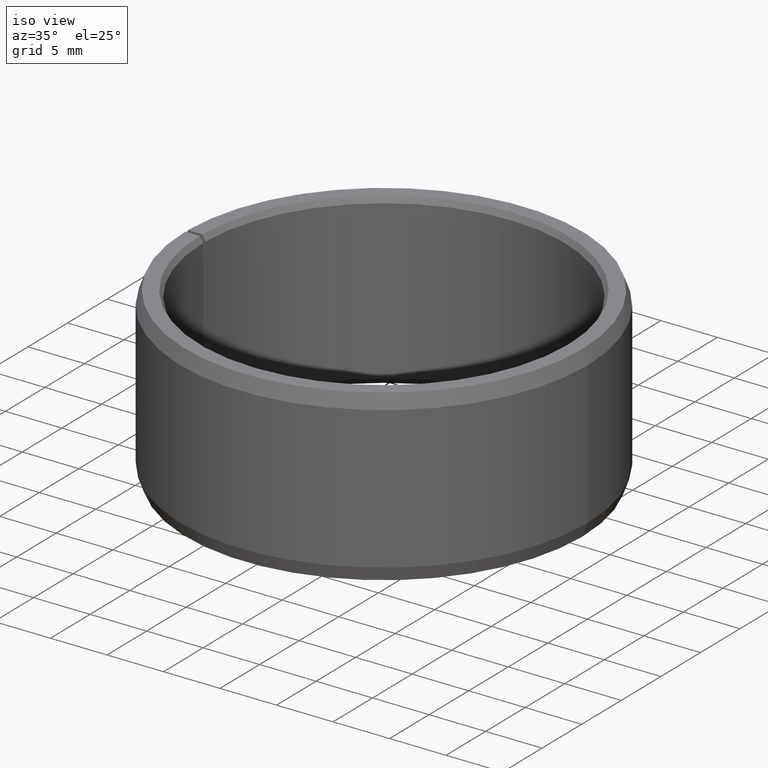
[diagram: clean part render]
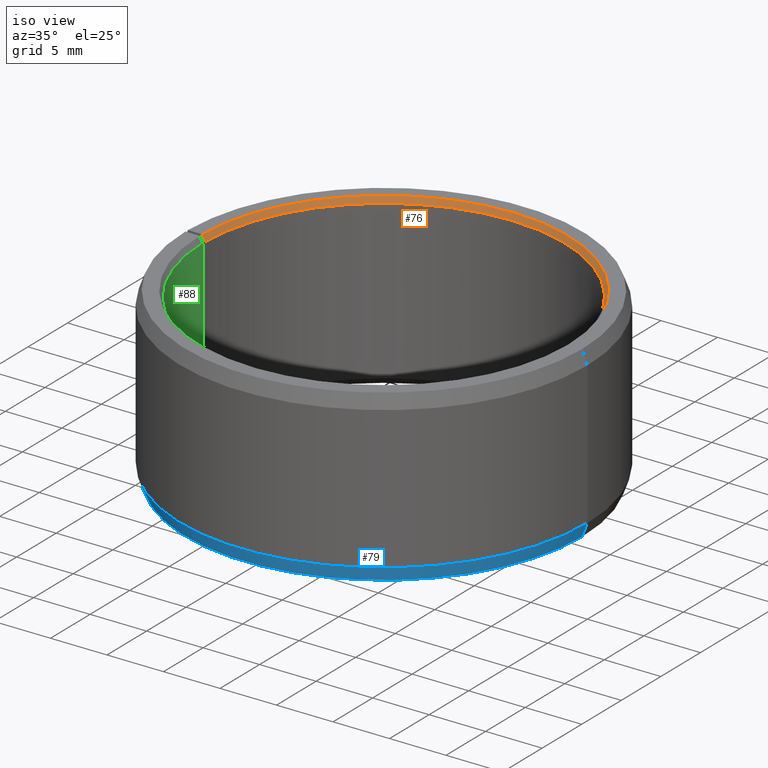
[diagram: same view with three faces highlighted in distinct colors, each labeled with its STEP entity id]
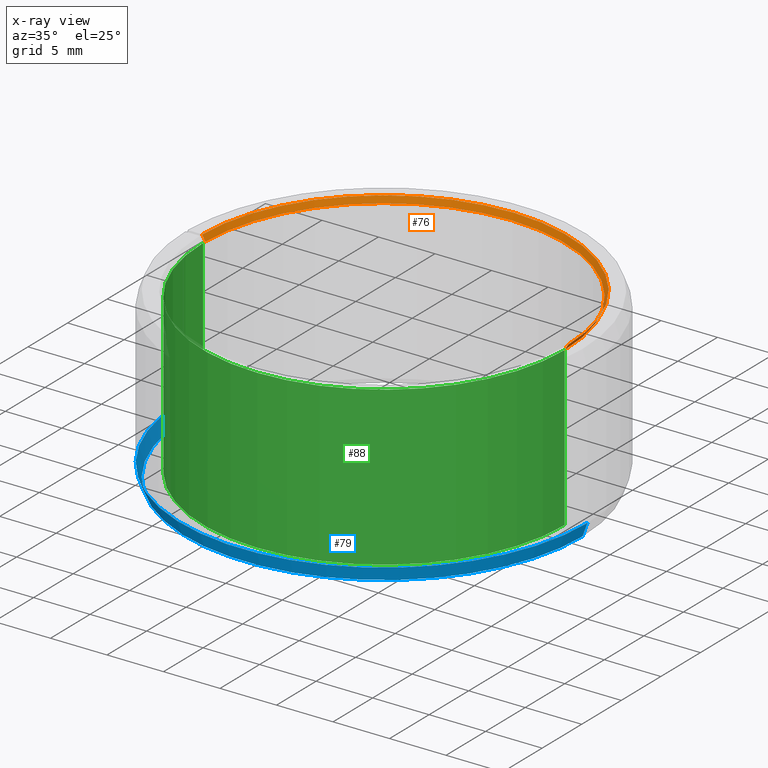
[diagram: x-ray of the same camera — body ghosted, the three highlighted faces saturated]
A machine part, iso view with three faces highlighted in distinct colors.
The next image is the same camera in x-ray (body ghosted, the three faces saturated) — at least one of them is partly hidden behind the body in this view.
Their STEP definitions:

[orange] entity #76 — the highlighted conical surface has half-angle 30 deg.
#76=ADVANCED_FACE('',(#94),#95,.F.);
#94=FACE_OUTER_BOUND('',#126,.T.);
#95=CONICAL_SURFACE('',#127,16.1443375672974,0.523598775598303);
#126=EDGE_LOOP('',(#163,#164,#165,#166));
#127=AXIS2_PLACEMENT_3D('',#167,#168,#169);
#163=ORIENTED_EDGE('',*,*,#284,.F.);
#164=ORIENTED_EDGE('',*,*,#285,.T.);
#165=ORIENTED_EDGE('',*,*,#286,.T.);
#166=ORIENTED_EDGE('',*,*,#281,.F.);
#167=CARTESIAN_POINT('',(8.44673607181666E-015,-8.8523736642439E-015,14.75));
#168=DIRECTION('',(5.48707263966375E-016,-6.09939603923743E-016,1.0));
#169=DIRECTION('',(-1.0,1.76004364123684E-015,5.48707263966376E-016));
#281=EDGE_CURVE('',#318,#321,#322,.T.);
#284=EDGE_CURVE('',#326,#318,#327,.T.);
#285=EDGE_CURVE('',#326,#328,#329,.T.);
#286=EDGE_CURVE('',#328,#321,#330,.T.);
#318=VERTEX_POINT('',#380);
#321=VERTEX_POINT('',#384);
#322=CIRCLE('',#385,16.0);
#326=VERTEX_POINT('',#390);
#327=LINE('',#391,#392);
#328=VERTEX_POINT('',#393);
#329=CIRCLE('',#394,16.2886751345948);
#330=LINE('',#395,#396);
#380=CARTESIAN_POINT('',(16.0,-3.88200219016882E-014,14.5));
#384=CARTESIAN_POINT('',(-15.9975631225023,0.279238502996557,14.5));
#385=AXIS2_PLACEMENT_3D('',#465,#466,#467);
#390=CARTESIAN_POINT('',(16.2886751345948,-3.96684250466343E-014,15.0));
#391=CARTESIAN_POINT('',(16.1443375672974,-3.92442234741613E-014,14.75));
#392=VECTOR('',#472,1.0);
#393=CARTESIAN_POINT('',(-16.2861942904758,0.284276578773844,15.0));
#394=AXIS2_PLACEMENT_3D('',#473,#474,#475);
#395=CARTESIAN_POINT('',(-16.2861942904758,0.284276578773844,15.0));
#396=VECTOR('',#476,9.99999999999999);
#465=CARTESIAN_POINT('',(8.30955925582507E-015,-8.7151968482523E-015,14.5));
#466=DIRECTION('',(5.48707263966375E-016,-6.09939603923743E-016,1.0));
#467=DIRECTION('',(-1.0,1.76004364123684E-015,5.48707263966376E-016));
#472=DIRECTION('',(-0.500000000000004,1.46947735234797E-015,-0.866025403784436));
#473=CARTESIAN_POINT('',(8.58391288780825E-015,-8.98955048023549E-015,15.0));
#474=DIRECTION('',(5.48707263966375E-016,-6.09939603923743E-016,1.0));
#475=DIRECTION('',(-1.0,1.76004364123684E-015,5.48707263966376E-016));
#476=DIRECTION('',(0.499923847578199,-0.00872620321864232,-0.866025403784437));

[blue] entity #79 — the highlighted conical surface has half-angle 20 deg.
#79=ADVANCED_FACE('',(#100),#101,.T.);
#100=FACE_OUTER_BOUND('',#132,.T.);
#101=CONICAL_SURFACE('',#133,17.7816178594403,0.349065850398868);
#132=EDGE_LOOP('',(#184,#185,#186,#187));
#133=AXIS2_PLACEMENT_3D('',#188,#189,#190);
#184=ORIENTED_EDGE('',*,*,#294,.F.);
#185=ORIENTED_EDGE('',*,*,#293,.F.);
#186=ORIENTED_EDGE('',*,*,#295,.F.);
#187=ORIENTED_EDGE('',*,*,#296,.T.);
#188=CARTESIAN_POINT('',(6.82528286692463E-016,-1.08816587911968E-015,0.600000000000002));
#189=DIRECTION('',(5.48707263966375E-016,-6.09939603923743E-016,1.0));
#190=DIRECTION('',(-1.0,1.76004364123684E-015,5.48707263966376E-016));
#293=EDGE_CURVE('',#341,#339,#343,.T.);
#294=EDGE_CURVE('',#339,#344,#345,.T.);
#295=EDGE_CURVE('',#346,#341,#347,.T.);
#296=EDGE_CURVE('',#346,#344,#348,.T.);
#339=VERTEX_POINT('',#407);
#341=VERTEX_POINT('',#410);
#343=CIRCLE('',#413,18.0);
#344=VERTEX_POINT('',#414);
#345=LINE('',#415,#416);
#346=VERTEX_POINT('',#417);
#347=LINE('',#418,#419);
#348=CIRCLE('',#420,17.5632357188806);
#407=CARTESIAN_POINT('',(18.0,-3.53392794222023E-014,1.19999999999999));
#410=CARTESIAN_POINT('',(-18.0,3.25473934106378E-014,1.20000000000001));
#413=AXIS2_PLACEMENT_3D('',#487,#488,#489);
#414=CARTESIAN_POINT('',(17.5632357188806,-3.37851395039047E-014,-8.19378508569077E-015));
#415=CARTESIAN_POINT('',(17.7816178594403,-3.45622094630535E-014,0.599999999999992));
#416=VECTOR('',#490,1.0);
#417=CARTESIAN_POINT('',(-17.5632357188806,3.25972111149755E-014,1.16061561927406E-014));
#418=CARTESIAN_POINT('',(-17.5632357188806,3.25972111149755E-014,1.16061561927406E-014));
#419=VECTOR('',#491,9.99999999999999);
#420=AXIS2_PLACEMENT_3D('',#492,#493,#494);
#487=CARTESIAN_POINT('',(1.01175264507229E-015,-1.41739023749951E-015,1.2));
#488=DIRECTION('',(5.48707263966375E-016,-6.09939603923743E-016,1.0));
#489=DIRECTION('',(-1.0,1.76004364123684E-015,5.48707263966376E-016));
#490=DIRECTION('',(-0.342020143325672,1.21701151074425E-015,-0.939692620785907));
#491=DIRECTION('',(-0.34202014332567,1.33819041265151E-016,0.939692620785908));
#492=CARTESIAN_POINT('',(3.53303928312638E-016,-7.58941520739854E-016,1.40055521273414E-015));
#493=DIRECTION('',(5.48707263966375E-016,-6.09939603923743E-016,1.0));
#494=DIRECTION('',(-1.0,1.76004364123684E-015,5.48707263966376E-016));

[green] entity #88 — the highlighted cylindrical surface (partial cylindrical patch) has radius 16 mm, axis along (0, -0, 1).
#88=ADVANCED_FACE('',(#118),#119,.F.);
#118=FACE_OUTER_BOUND('',#150,.T.);
#119=CYLINDRICAL_SURFACE('',#151,16.0);
#150=EDGE_LOOP('',(#251,#252,#253,#254));
#151=AXIS2_PLACEMENT_3D('',#255,#256,#257);
#251=ORIENTED_EDGE('',*,*,#280,.T.);
#252=ORIENTED_EDGE('',*,*,#302,.F.);
#253=ORIENTED_EDGE('',*,*,#317,.F.);
#254=ORIENTED_EDGE('',*,*,#315,.T.);
#255=CARTESIAN_POINT('',(4.46860840806045E-015,-4.87424600048767E-015,7.5));
#256=DIRECTION('',(5.48707263966375E-016,-6.09939603923743E-016,1.0));
#257=DIRECTION('',(-1.0,1.76004364123684E-015,5.48707263966376E-016));
#280=EDGE_CURVE('',#318,#319,#320,.T.);
#302=EDGE_CURVE('',#356,#319,#358,.T.);
#315=EDGE_CURVE('',#376,#318,#377,.T.);
#317=EDGE_CURVE('',#376,#356,#379,.T.);
#318=VERTEX_POINT('',#380);
#319=VERTEX_POINT('',#381);
#320=LINE('',#382,#383);
#356=VERTEX_POINT('',#430);
#358=CIRCLE('',#433,16.0);
#376=VERTEX_POINT('',#458);
#377=CIRCLE('',#459,16.0);
#379=LINE('',#462,#463);
#380=CARTESIAN_POINT('',(16.0,-3.88200219016882E-014,14.5));
#381=CARTESIAN_POINT('',(16.0,-3.11687363761376E-014,0.499999999999993));
#382=CARTESIAN_POINT('',(16.0,-3.49943791389129E-014,7.49999999999999));
#383=VECTOR('',#464,1.0);
#430=CARTESIAN_POINT('',(-16.0,3.01444885563991E-014,0.500000000000011));
#433=AXIS2_PLACEMENT_3D('',#504,#505,#506);
#458=CARTESIAN_POINT('',(-16.0,2.02421408116195E-014,14.5));
#459=AXIS2_PLACEMENT_3D('',#529,#530,#531);
#462=CARTESIAN_POINT('',(-16.0,2.02421408116195E-014,14.5));
#463=VECTOR('',#533,10.0);
#464=DIRECTION('',(-5.48707263966375E-016,6.09939603923743E-016,-1.0));
#504=CARTESIAN_POINT('',(6.27657560295825E-016,-1.03329515272304E-015,0.500000000000002));
#505=DIRECTION('',(5.48707263966375E-016,-6.09939603923743E-016,1.0));
#506=DIRECTION('',(-1.0,1.76004364123684E-015,5.48707263966376E-016));
#529=CARTESIAN_POINT('',(8.30955925582507E-015,-8.7151968482523E-015,14.5));
#530=DIRECTION('',(5.48707263966375E-016,-6.09939603923743E-016,1.0));
#531=DIRECTION('',(-1.0,1.76004364123684E-015,5.48707263966376E-016));
#533=DIRECTION('',(-8.65913842430705E-016,7.07310553198542E-016,-1.0));